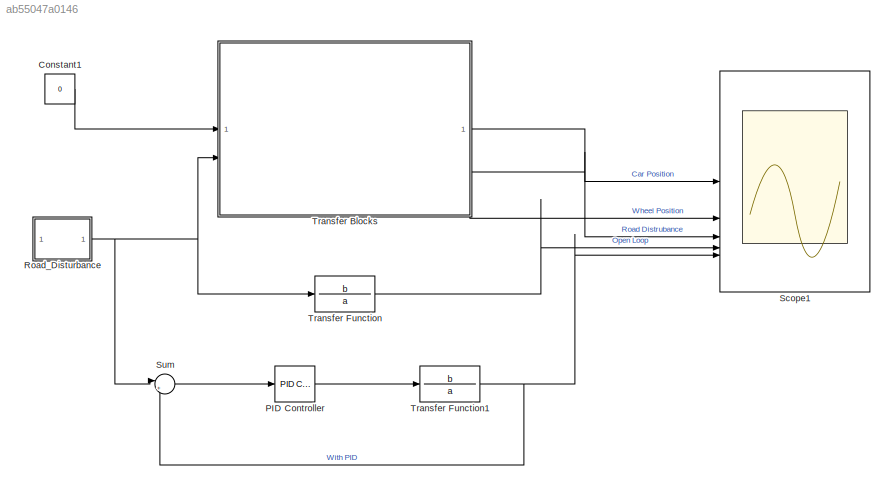
MODEL slx_ab55047a0146
KIND model
CONFIG AbsTol = auto
CONFIG EnableMultiTasking = off
CONFIG FixedStep = auto
CONFIG MaxStep = 1e-3
CONFIG MinStep = auto
CONFIG RelTol = 1e-3
CONFIG SampleTimeConstraint = Unconstrained
CONFIG SolverName = VariableStepAuto
CONFIG StartTime = 0.0
CONFIG StopTime = 10.0
BLOCK [Constant] Constant1
  Value = 0
BLOCK [Reference] PID Controller  REF=slpidlib/PID Controller
  LibrarySourceBlock = simulink/Continuous/PID Controller
  SourceBlock = slpidlib/PID Controller
  SourceType = PID 1dof
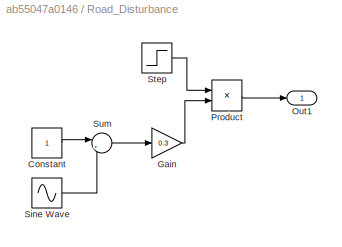
BLOCK [SubSystem] Road_Disturbance
BLOCK [Constant] Road_Disturbance/Constant
BLOCK [Gain] Road_Disturbance/Gain
  Gain = 0.3
BLOCK [Outport] Road_Disturbance/Out1
BLOCK [Product] Road_Disturbance/Product
BLOCK [Sin] Road_Disturbance/Sine Wave
  Frequency = 2*pi
  Phase = pi/2
  SampleTime = 0
BLOCK [Step] Road_Disturbance/Step
  After = 0
  Before = 1
  SampleTime = 0
BLOCK [Sum] Road_Disturbance/Sum
  Inputs = |+-
BLOCK [Scope] Scope1
  Floating = off
  NumInputPorts = 6
  ScopeSpecificationString = Simulink.scopes.TimeScopeBlockCfg('CurrentConfiguration', extmgr.ConfigurationSet(extmgr.Configuration('Core','General UI',true),extmgr.Configuration('Core','Source UI',true),extmgr.Configuration('Sources','WiredSimulink',true),extmgr.Configuration('Visuals','Time Domain',true,'SerializedDisplays',{struct('MinYLimReal','-0.54224','MaxYLimReal','0.99101','YLabelReal','','MinYLimMag','0.00000','MaxY...<+1565ch>
BLOCK [Sum] Sum
  Inputs = |+-
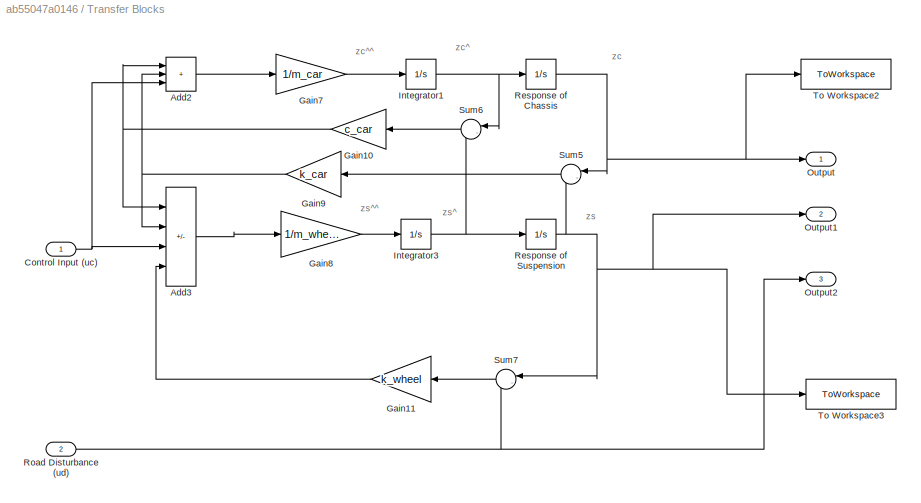
BLOCK [SubSystem] Transfer Blocks
BLOCK [Sum] Transfer Blocks/Add2
  IconShape = rectangular
  Inputs = +++
BLOCK [Sum] Transfer Blocks/Add3
  IconShape = rectangular
  Inputs = ---+
BLOCK [Inport] Transfer Blocks/Control Input (uc)
BLOCK [Gain] Transfer Blocks/Gain10
  Gain = c_car
  NameLocation = top
BLOCK [Gain] Transfer Blocks/Gain11
  Gain = k_wheel
  NameLocation = top
BLOCK [Gain] Transfer Blocks/Gain7
  Gain = 1/m_car
BLOCK [Gain] Transfer Blocks/Gain8
  Gain = 1/m_wheel
BLOCK [Gain] Transfer Blocks/Gain9
  Gain = k_car
  NameLocation = top
BLOCK [Integrator] Transfer Blocks/Integrator1
BLOCK [Integrator] Transfer Blocks/Integrator3
BLOCK [Outport] Transfer Blocks/Output
BLOCK [Outport] Transfer Blocks/Output1
  Port = 2
BLOCK [Outport] Transfer Blocks/Output2
  Port = 3
BLOCK [Integrator] Transfer Blocks/Response of Chassis
BLOCK [Integrator] Transfer Blocks/Response of Suspension
BLOCK [Inport] Transfer Blocks/Road Disturbance (ud)
  Port = 2
BLOCK [Sum] Transfer Blocks/Sum5
  Inputs = |-+
  NameLocation = top
BLOCK [Sum] Transfer Blocks/Sum6
  Inputs = |-+
  NameLocation = top
BLOCK [Sum] Transfer Blocks/Sum7
  Inputs = |-+
  NameLocation = top
BLOCK [ToWorkspace] Transfer Blocks/To Workspace2
  FixptAsFi = on
  MaxDataPoints = inf
  SampleTime = -1
  SaveFormat = Timeseries
  VariableName = Z_Car
BLOCK [ToWorkspace] Transfer Blocks/To Workspace3
  FixptAsFi = on
  MaxDataPoints = inf
  SampleTime = -1
  SaveFormat = Timeseries
  VariableName = Z_Wheel
BLOCK [TransferFcn] Transfer Function
  Denominator = a
  Numerator = b
BLOCK [TransferFcn] Transfer Function1
  Denominator = a
  Numerator = b
ANNOTATION Transfer Blocks: zc
ANNOTATION Transfer Blocks: zc^
ANNOTATION Transfer Blocks: zc^^
ANNOTATION Transfer Blocks: zs
ANNOTATION Transfer Blocks: zs^
ANNOTATION Transfer Blocks: zs^^
LINE Constant1:1 -> Transfer Blocks:1
LINE PID Controller:1 -> Transfer Function1:1
LINE Road_Disturbance/Constant:1 -> Road_Disturbance/Sum:1
LINE Road_Disturbance/Gain:1 -> Road_Disturbance/Product:2
LINE Road_Disturbance/Product:1 -> Road_Disturbance/Out1:1
LINE Road_Disturbance/Sine Wave:1 -> Road_Disturbance/Sum:2
LINE Road_Disturbance/Step:1 -> Road_Disturbance/Product:1
LINE Road_Disturbance/Sum:1 -> Road_Disturbance/Gain:1
NET Road_Disturbance:1 -> Sum:1, Transfer Blocks:2, Transfer Function:1
LINE Sum:1 -> PID Controller:1
LINE Transfer Blocks/Add2:1 -> Transfer Blocks/Gain7:1
LINE Transfer Blocks/Add3:1 -> Transfer Blocks/Gain8:1
NET Transfer Blocks/Control Input (uc):1 -> Transfer Blocks/Add2:3, Transfer Blocks/Add3:3
NET Transfer Blocks/Gain10:1 -> Transfer Blocks/Add2:1, Transfer Blocks/Add3:1
LINE Transfer Blocks/Gain11:1 -> Transfer Blocks/Add3:4
LINE Transfer Blocks/Gain7:1 -> Transfer Blocks/Integrator1:1
LINE Transfer Blocks/Gain8:1 -> Transfer Blocks/Integrator3:1
NET Transfer Blocks/Gain9:1 -> Transfer Blocks/Add2:2, Transfer Blocks/Add3:2
NET Transfer Blocks/Integrator1:1 -> Transfer Blocks/Response of Chassis:1, Transfer Blocks/Sum6:1
NET Transfer Blocks/Integrator3:1 -> Transfer Blocks/Response of Suspension:1, Transfer Blocks/Sum6:2
NET Transfer Blocks/Response of Chassis:1 -> Transfer Blocks/Output:1, Transfer Blocks/Sum5:1, Transfer Blocks/To Workspace2:1
NET Transfer Blocks/Response of Suspension:1 -> Transfer Blocks/Output1:1, Transfer Blocks/Sum5:2, Transfer Blocks/Sum7:1, Transfer Blocks/To Workspace3:1
NET Transfer Blocks/Road Disturbance (ud):1 -> Transfer Blocks/Output2:1, Transfer Blocks/Sum7:2
LINE Transfer Blocks/Sum5:1 -> Transfer Blocks/Gain9:1
LINE Transfer Blocks/Sum6:1 -> Transfer Blocks/Gain10:1
LINE Transfer Blocks/Sum7:1 -> Transfer Blocks/Gain11:1
LINE Transfer Blocks:1 -> Scope1:1
LINE Transfer Blocks:2 -> Scope1:2
LINE Transfer Blocks:3 -> Scope1:3
NET Transfer Function1:1 -> Scope1:5, Sum:2
LINE Transfer Function:1 -> Scope1:4
note: NET lines group one-source signal fan-out (src -> all destinations, sorted); 1:1 wires keep LINE
